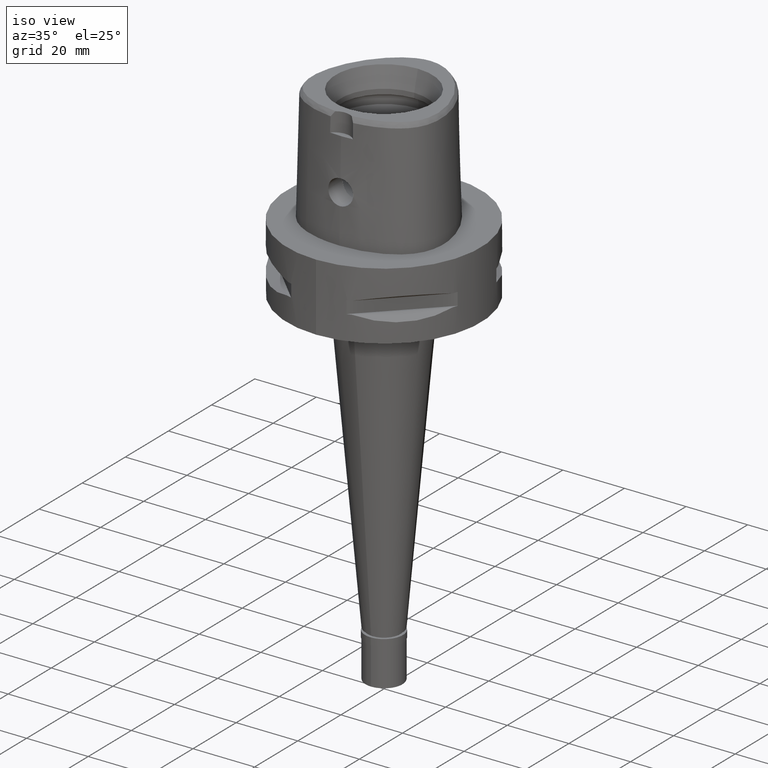
[diagram: clean part render]
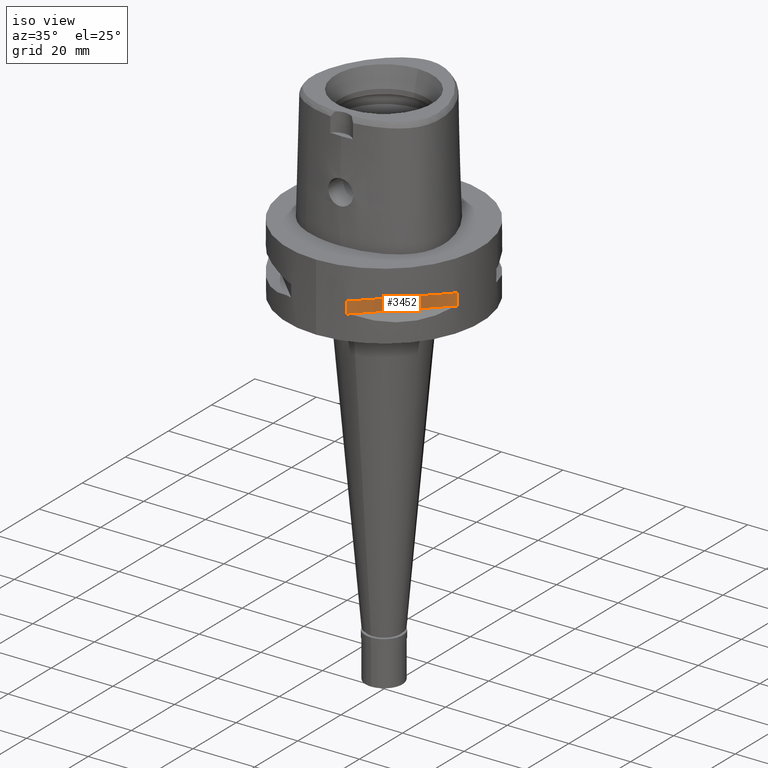
[diagram: same view with one face highlighted and labeled with its STEP entity id]
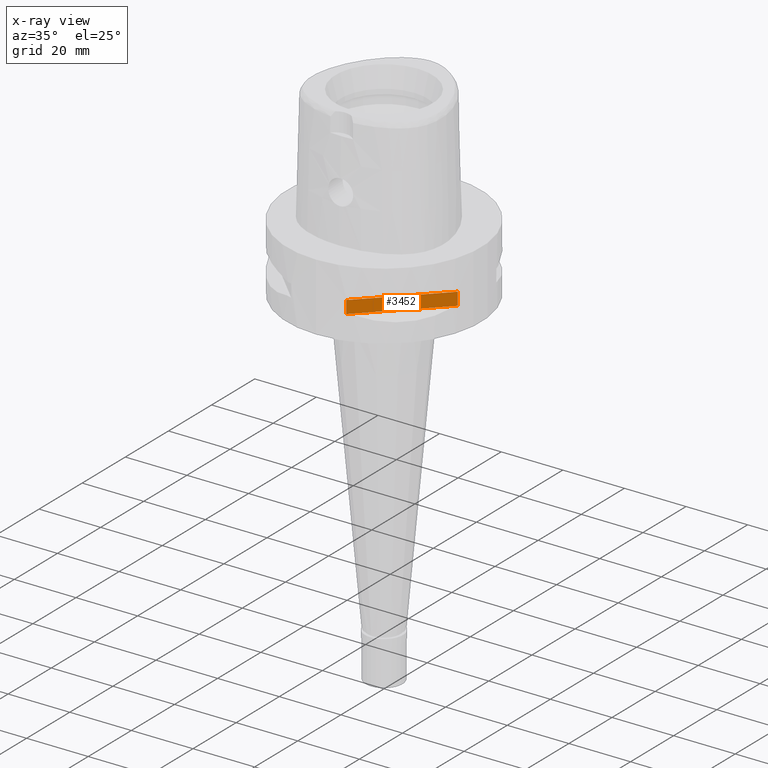
[diagram: x-ray of the same camera — body ghosted, the highlighted face saturated]
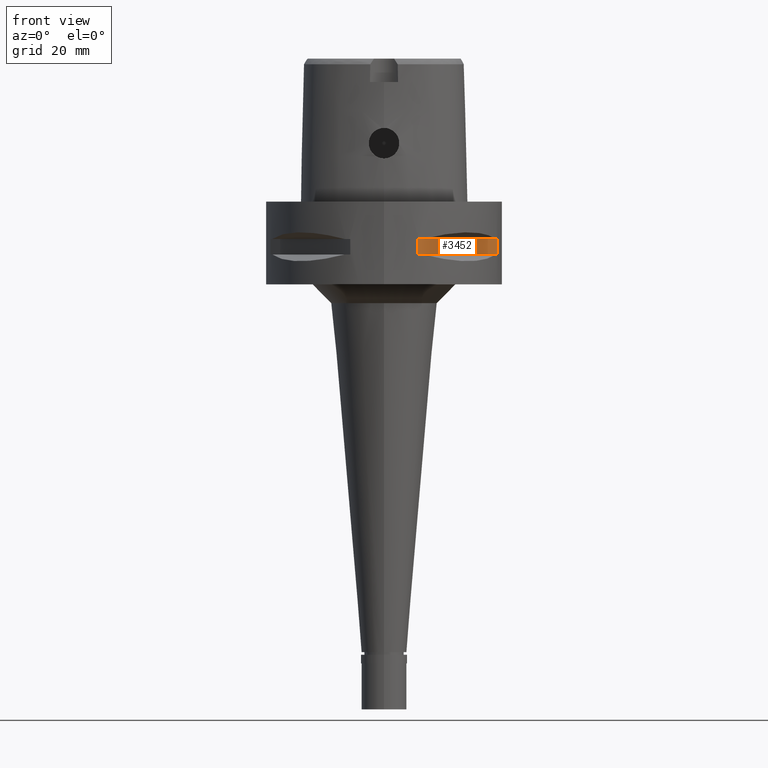
[diagram: same view with one face highlighted and labeled with its STEP entity id]
A machine part, iso view. The second image highlights one B-rep face of the part: STEP entity #3452.
The next image is the same camera in x-ray: the body ghosted, the highlighted face saturated — about 0% of this face is hidden behind the body in this view.
A second angle (front view) of the same face is appended — the face is thin or edge-on in the first view.
In plain terms, the highlighted planar face has unit normal (-0.7071, 0.7071, 0).
Its self-contained STEP definition (entity closure, byte-faithful):
#65 = CARTESIAN_POINT ( 'NONE',  ( 33.72899346260000186, -5.444722215136000187, -9.950000000000001066 ) ) ;
#124 = DIRECTION ( 'NONE',  ( 0.7071067811865474617, 0.7071067811865474617, 0.0000000000000000000 ) ) ;
#215 = ORIENTED_EDGE ( 'NONE', *, *, #3823, .T. ) ;
#218 = DIRECTION ( 'NONE',  ( 0.7071067811865474617, 0.7071067811865474617, 0.0000000000000000000 ) ) ;
#959 = ORIENTED_EDGE ( 'NONE', *, *, #1138, .T. ) ;
#1120 = VECTOR ( 'NONE', #4027, 1000.000000000000000 ) ;
#1138 = EDGE_CURVE ( 'NONE', #1841, #2328, #3278, .T. ) ;
#1406 = CARTESIAN_POINT ( 'NONE',  ( 30.19251670572000279, -8.981198972017999438, -14.05000000000000071 ) ) ;
#1641 = EDGE_CURVE ( 'NONE', #1841, #4144, #2100, .T. ) ;
#1729 = DIRECTION ( 'NONE',  ( 0.0000000000000000000, 0.0000000000000000000, -1.000000000000000000 ) ) ;
#1841 = VERTEX_POINT ( 'NONE', #2150 ) ;
#2100 = LINE ( 'NONE', #3192, #4264 ) ;
#2107 = CARTESIAN_POINT ( 'NONE',  ( 8.981198972017999438, -30.19251670572000279, -9.950000000000001066 ) ) ;
#2114 = LINE ( 'NONE', #3621, #3175 ) ;
#2150 = CARTESIAN_POINT ( 'NONE',  ( 8.981198972019999616, -30.19251670572000279, -9.950000000000001066 ) ) ;
#2249 = CARTESIAN_POINT ( 'NONE',  ( 8.981198972017999438, -30.19251670572000279, -14.05000000000000071 ) ) ;
#2258 = CARTESIAN_POINT ( 'NONE',  ( 30.19251670572000279, -8.981198972017999438, -9.950000000000001066 ) ) ;
#2328 = VERTEX_POINT ( 'NONE', #2249 ) ;
#2330 = FACE_OUTER_BOUND ( 'NONE', #3929, .T. ) ;
#2372 = AXIS2_PLACEMENT_3D ( 'NONE', #65, #2752, #2701 ) ;
#2701 = DIRECTION ( 'NONE',  ( 0.0000000000000000000, 0.0000000000000000000, 1.000000000000000000 ) ) ;
#2752 = DIRECTION ( 'NONE',  ( -0.7071067811865475727, 0.7071067811865475727, 0.0000000000000000000 ) ) ;
#2880 = LINE ( 'NONE', #1406, #1120 ) ;
#2887 = ORIENTED_EDGE ( 'NONE', *, *, #1641, .F. ) ;
#3175 = VECTOR ( 'NONE', #218, 1000.000000000000114 ) ;
#3192 = CARTESIAN_POINT ( 'NONE',  ( 8.981198972017999438, -30.19251670572000279, -9.950000000000001066 ) ) ;
#3278 = LINE ( 'NONE', #2107, #3330 ) ;
#3330 = VECTOR ( 'NONE', #1729, 1000.000000000000000 ) ;
#3452 = ADVANCED_FACE ( 'NONE', ( #2330 ), #3500, .F. ) ;
#3500 = PLANE ( 'NONE',  #2372 ) ;
#3621 = CARTESIAN_POINT ( 'NONE',  ( 8.981198972017999438, -30.19251670572000279, -14.05000000000000071 ) ) ;
#3823 = EDGE_CURVE ( 'NONE', #2328, #4793, #2114, .T. ) ;
#3851 = ORIENTED_EDGE ( 'NONE', *, *, #4433, .T. ) ;
#3929 = EDGE_LOOP ( 'NONE', ( #2887, #959, #215, #3851 ) ) ;
#4027 = DIRECTION ( 'NONE',  ( 0.0000000000000000000, 0.0000000000000000000, 1.000000000000000000 ) ) ;
#4144 = VERTEX_POINT ( 'NONE', #2258 ) ;
#4264 = VECTOR ( 'NONE', #124, 1000.000000000000114 ) ;
#4433 = EDGE_CURVE ( 'NONE', #4793, #4144, #2880, .T. ) ;
#4762 = CARTESIAN_POINT ( 'NONE',  ( 30.19251670572000279, -8.981198972019999616, -14.05000000000000071 ) ) ;
#4793 = VERTEX_POINT ( 'NONE', #4762 ) ;